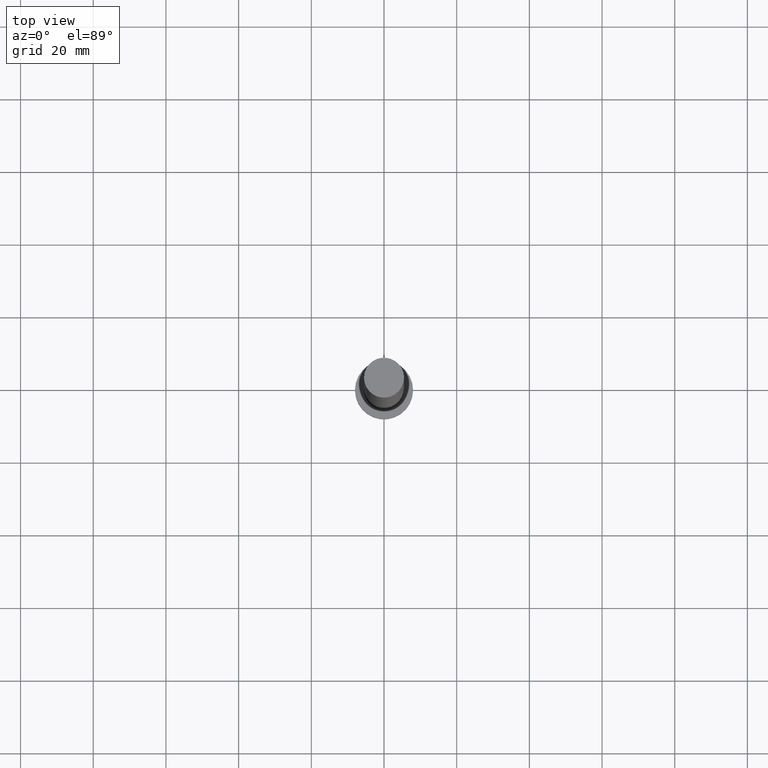
[diagram: clean part render]
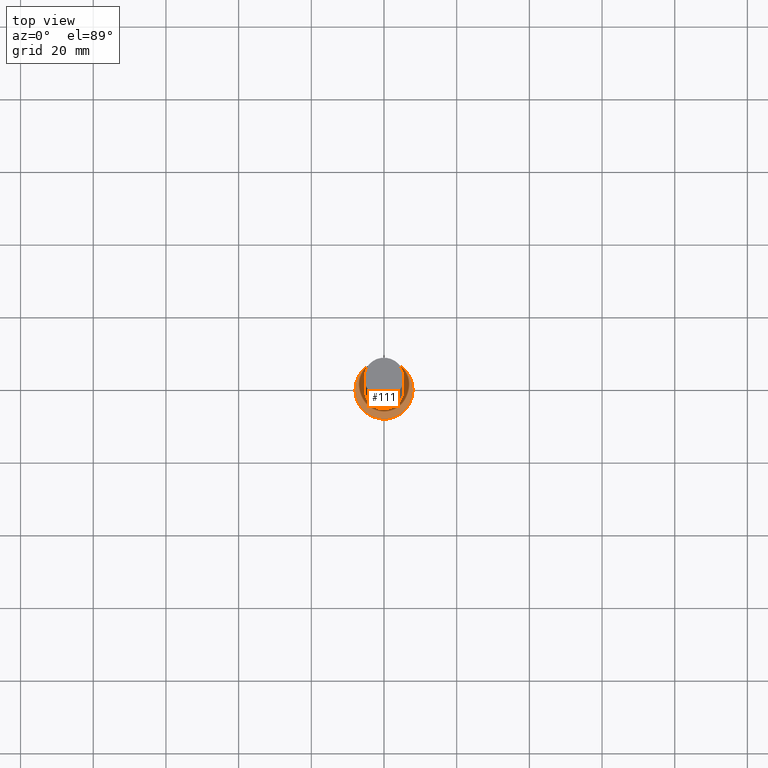
[diagram: same view with one face highlighted and labeled with its STEP entity id]
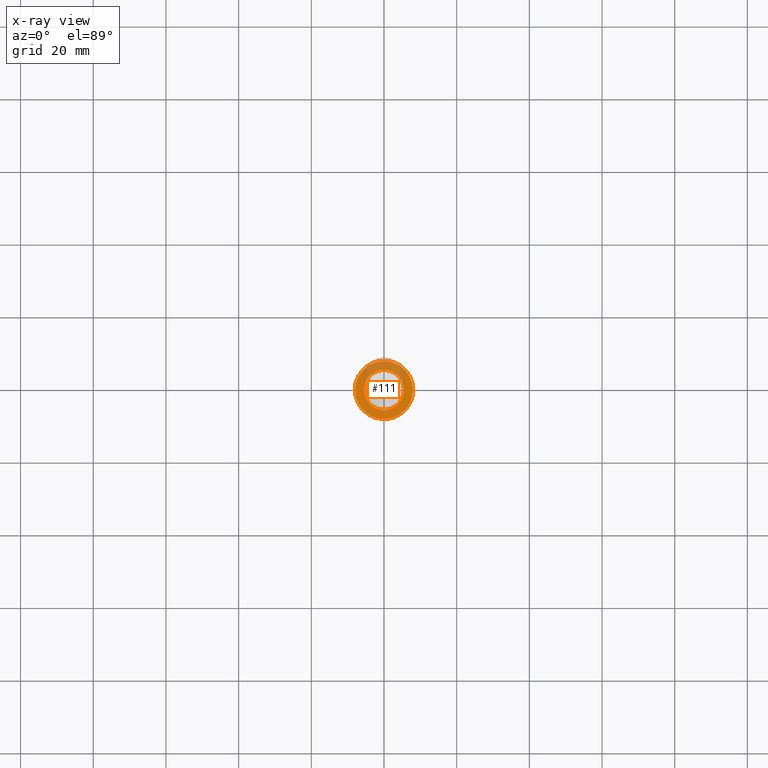
[diagram: x-ray of the same camera — body ghosted, the highlighted face saturated]
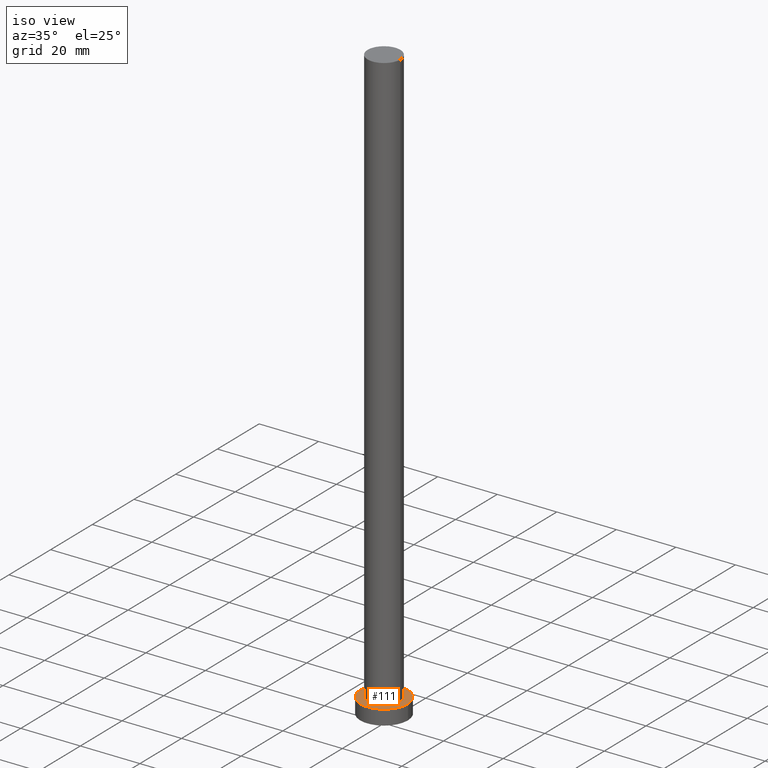
[diagram: same view with one face highlighted and labeled with its STEP entity id]
A machine part, top view. The second image highlights one B-rep face of the part: STEP entity #111.
The next image is the same camera in x-ray: the body ghosted, the highlighted face saturated — about 30% of this face is hidden behind the body in this view.
A second angle (iso view) of the same face is appended — the face is thin or edge-on in the first view.
In plain terms, the highlighted planar face has unit normal (0, 0, 1).
Its self-contained STEP definition (entity closure, byte-faithful):
#5 = VERTEX_POINT ( 'NONE', #27 ) ;
#14 = EDGE_CURVE ( 'NONE', #158, #5, #30, .T. ) ;
#15 = FACE_BOUND ( 'NONE', #63, .T. ) ;
#24 = CIRCLE ( 'NONE', #35, 8.000000000000000000 ) ;
#27 = CARTESIAN_POINT ( 'NONE',  ( -5.500000000000000000, 0.000000000000000000, 5.000000000000000000 ) ) ;
#30 = CIRCLE ( 'NONE', #168, 5.500000000000000000 ) ;
#35 = AXIS2_PLACEMENT_3D ( 'NONE', #208, #86, #141 ) ;
#48 = EDGE_CURVE ( 'NONE', #225, #204, #52, .T. ) ;
#49 = FACE_OUTER_BOUND ( 'NONE', #121, .T. ) ;
#51 = DIRECTION ( 'NONE',  ( 0.000000000000000000, 0.000000000000000000, 1.000000000000000000 ) ) ;
#52 = CIRCLE ( 'NONE', #196, 8.000000000000000000 ) ;
#58 = EDGE_CURVE ( 'NONE', #5, #158, #227, .T. ) ;
#63 = EDGE_LOOP ( 'NONE', ( #85, #110 ) ) ;
#65 = ORIENTED_EDGE ( 'NONE', *, *, #48, .T. ) ;
#75 = CARTESIAN_POINT ( 'NONE',  ( -8.000000000000000000, 0.000000000000000000, 5.000000000000000000 ) ) ;
#81 = EDGE_CURVE ( 'NONE', #204, #225, #24, .T. ) ;
#85 = ORIENTED_EDGE ( 'NONE', *, *, #58, .F. ) ;
#86 = DIRECTION ( 'NONE',  ( 0.000000000000000000, 0.000000000000000000, 1.000000000000000000 ) ) ;
#91 = CARTESIAN_POINT ( 'NONE',  ( 0.000000000000000000, 0.000000000000000000, 5.000000000000000000 ) ) ;
#105 = PLANE ( 'NONE',  #174 ) ;
#109 = DIRECTION ( 'NONE',  ( 1.000000000000000000, 0.000000000000000000, 0.000000000000000000 ) ) ;
#110 = ORIENTED_EDGE ( 'NONE', *, *, #14, .F. ) ;
#111 = ADVANCED_FACE ( 'NONE', ( #15, #49 ), #105, .T. ) ;
#112 = DIRECTION ( 'NONE',  ( 0.000000000000000000, 0.000000000000000000, 1.000000000000000000 ) ) ;
#119 = ORIENTED_EDGE ( 'NONE', *, *, #81, .T. ) ;
#121 = EDGE_LOOP ( 'NONE', ( #65, #119 ) ) ;
#123 = DIRECTION ( 'NONE',  ( 1.000000000000000000, 0.000000000000000000, 0.000000000000000000 ) ) ;
#130 = CARTESIAN_POINT ( 'NONE',  ( 5.500000000000000000, 6.735557395310442023E-16, 5.000000000000000000 ) ) ;
#141 = DIRECTION ( 'NONE',  ( 1.000000000000000000, 0.000000000000000000, 0.000000000000000000 ) ) ;
#142 = DIRECTION ( 'NONE',  ( 0.000000000000000000, 0.000000000000000000, 1.000000000000000000 ) ) ;
#150 = CARTESIAN_POINT ( 'NONE',  ( 8.000000000000000000, 9.797174393178825657E-16, 5.000000000000000000 ) ) ;
#158 = VERTEX_POINT ( 'NONE', #130 ) ;
#165 = CARTESIAN_POINT ( 'NONE',  ( 0.000000000000000000, 0.000000000000000000, 5.000000000000000000 ) ) ;
#166 = DIRECTION ( 'NONE',  ( 1.000000000000000000, 0.000000000000000000, 0.000000000000000000 ) ) ;
#168 = AXIS2_PLACEMENT_3D ( 'NONE', #165, #142, #123 ) ;
#174 = AXIS2_PLACEMENT_3D ( 'NONE', #252, #112, #250 ) ;
#184 = DIRECTION ( 'NONE',  ( 0.000000000000000000, 0.000000000000000000, 1.000000000000000000 ) ) ;
#186 = CARTESIAN_POINT ( 'NONE',  ( 0.000000000000000000, 0.000000000000000000, 5.000000000000000000 ) ) ;
#196 = AXIS2_PLACEMENT_3D ( 'NONE', #186, #184, #109 ) ;
#204 = VERTEX_POINT ( 'NONE', #150 ) ;
#208 = CARTESIAN_POINT ( 'NONE',  ( 0.000000000000000000, 0.000000000000000000, 5.000000000000000000 ) ) ;
#225 = VERTEX_POINT ( 'NONE', #75 ) ;
#227 = CIRCLE ( 'NONE', #237, 5.500000000000000000 ) ;
#237 = AXIS2_PLACEMENT_3D ( 'NONE', #91, #51, #166 ) ;
#250 = DIRECTION ( 'NONE',  ( 1.000000000000000000, 0.000000000000000000, -0.000000000000000000 ) ) ;
#252 = CARTESIAN_POINT ( 'NONE',  ( 0.000000000000000000, 0.000000000000000000, 5.000000000000000000 ) ) ;